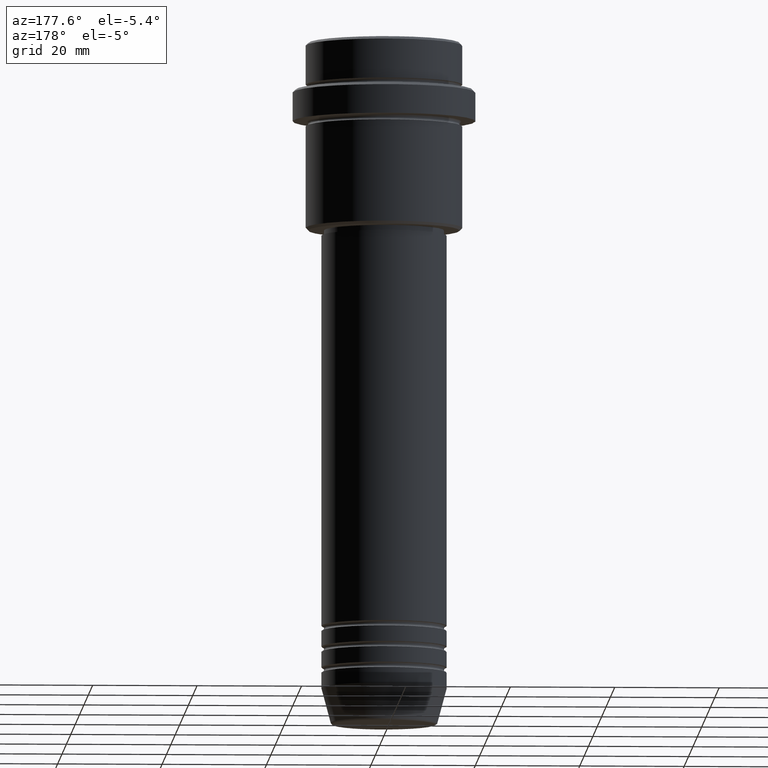
[diagram: clean part render]
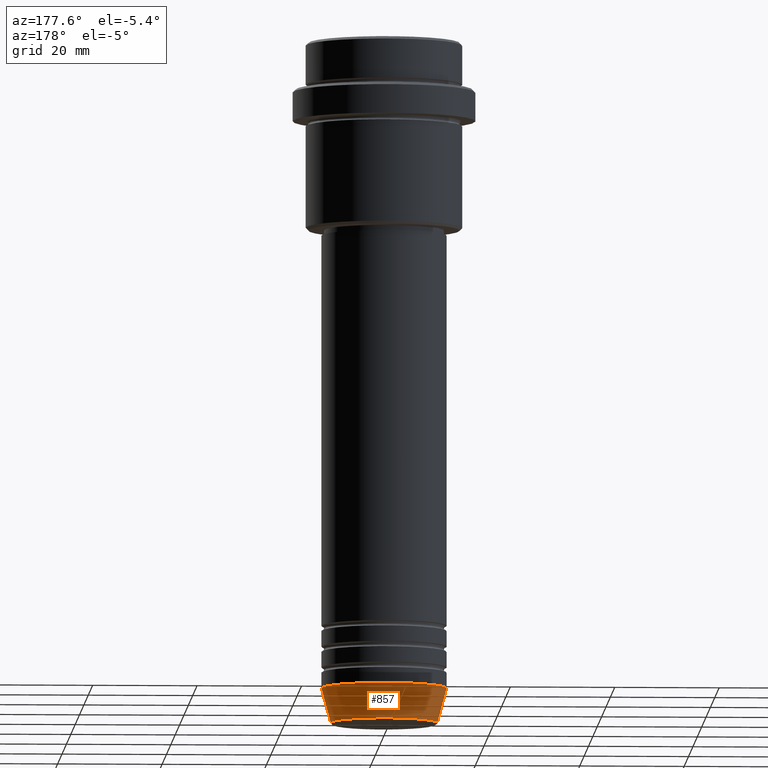
[diagram: same view with one face highlighted and labeled with its STEP entity id]
A machine part, auxiliary view. The second image highlights one B-rep face of the part: STEP entity #857.
In plain terms, the highlighted conical surface has half-angle 15 deg.
Its self-contained STEP definition (entity closure, byte-faithful):
#30 = LINE ( 'NONE', #597, #494 ) ;
#85 = DIRECTION ( 'NONE',  ( 1.000000000000000000, 0.000000000000000000, 0.000000000000000000 ) ) ;
#130 = ORIENTED_EDGE ( 'NONE', *, *, #1145, .F. ) ;
#215 = EDGE_CURVE ( 'NONE', #1149, #977, #624, .T. ) ;
#252 = EDGE_LOOP ( 'NONE', ( #1113, #506, #1283, #130 ) ) ;
#335 = CARTESIAN_POINT ( 'NONE',  ( -10.22365507213718949, 1.360806402472382744E-15, -130.6294095225512422 ) ) ;
#419 = VERTEX_POINT ( 'NONE', #1073 ) ;
#491 = CONICAL_SURFACE ( 'NONE', #535, 12.00000000000000000, 0.2617993877991500740 ) ;
#494 = VECTOR ( 'NONE', #931, 1000.000000000000000 ) ;
#503 = DIRECTION ( 'NONE',  ( -0.000000000000000000, -0.000000000000000000, 1.000000000000000000 ) ) ;
#506 = ORIENTED_EDGE ( 'NONE', *, *, #1239, .T. ) ;
#522 = VERTEX_POINT ( 'NONE', #335 ) ;
#535 = AXIS2_PLACEMENT_3D ( 'NONE', #1389, #503, #85 ) ;
#537 = VECTOR ( 'NONE', #806, 1000.000000000000000 ) ;
#597 = CARTESIAN_POINT ( 'NONE',  ( -12.00000000000000000, 1.469576158976823947E-15, -124.0000000000000000 ) ) ;
#624 = CIRCLE ( 'NONE', #1289, 12.00000000000000000 ) ;
#732 = EDGE_CURVE ( 'NONE', #419, #522, #875, .T. ) ;
#745 = AXIS2_PLACEMENT_3D ( 'NONE', #1375, #1137, #793 ) ;
#793 = DIRECTION ( 'NONE',  ( 1.000000000000000000, 0.000000000000000000, 0.000000000000000000 ) ) ;
#806 = DIRECTION ( 'NONE',  ( 0.2588190451025213501, 0.000000000000000000, 0.9659258262890680902 ) ) ;
#815 = DIRECTION ( 'NONE',  ( 1.000000000000000000, 0.000000000000000000, 0.000000000000000000 ) ) ;
#857 = ADVANCED_FACE ( 'NONE', ( #1052 ), #491, .T. ) ;
#875 = CIRCLE ( 'NONE', #745, 10.22365507213718949 ) ;
#917 = DIRECTION ( 'NONE',  ( -0.000000000000000000, -0.000000000000000000, 1.000000000000000000 ) ) ;
#931 = DIRECTION ( 'NONE',  ( -0.2588190451025213501, 3.169619151431772337E-17, 0.9659258262890680902 ) ) ;
#977 = VERTEX_POINT ( 'NONE', #1090 ) ;
#1052 = FACE_OUTER_BOUND ( 'NONE', #252, .T. ) ;
#1073 = CARTESIAN_POINT ( 'NONE',  ( 10.22365507213718949, 0.000000000000000000, -130.6294095225512422 ) ) ;
#1090 = CARTESIAN_POINT ( 'NONE',  ( -12.00000000000000000, 1.469576158976823947E-15, -124.0000000000000000 ) ) ;
#1113 = ORIENTED_EDGE ( 'NONE', *, *, #732, .T. ) ;
#1119 = CARTESIAN_POINT ( 'NONE',  ( 12.00000000000000000, 0.000000000000000000, -124.0000000000000000 ) ) ;
#1137 = DIRECTION ( 'NONE',  ( -0.000000000000000000, -0.000000000000000000, 1.000000000000000000 ) ) ;
#1145 = EDGE_CURVE ( 'NONE', #419, #1149, #1354, .T. ) ;
#1149 = VERTEX_POINT ( 'NONE', #1119 ) ;
#1239 = EDGE_CURVE ( 'NONE', #522, #977, #30, .T. ) ;
#1283 = ORIENTED_EDGE ( 'NONE', *, *, #215, .F. ) ;
#1284 = CARTESIAN_POINT ( 'NONE',  ( 0.000000000000000000, 0.000000000000000000, -124.0000000000000000 ) ) ;
#1289 = AXIS2_PLACEMENT_3D ( 'NONE', #1284, #917, #815 ) ;
#1347 = CARTESIAN_POINT ( 'NONE',  ( 12.00000000000000000, 0.000000000000000000, -124.0000000000000000 ) ) ;
#1354 = LINE ( 'NONE', #1347, #537 ) ;
#1375 = CARTESIAN_POINT ( 'NONE',  ( 0.000000000000000000, 0.000000000000000000, -130.6294095225512422 ) ) ;
#1389 = CARTESIAN_POINT ( 'NONE',  ( 0.000000000000000000, 0.000000000000000000, -124.0000000000000000 ) ) ;